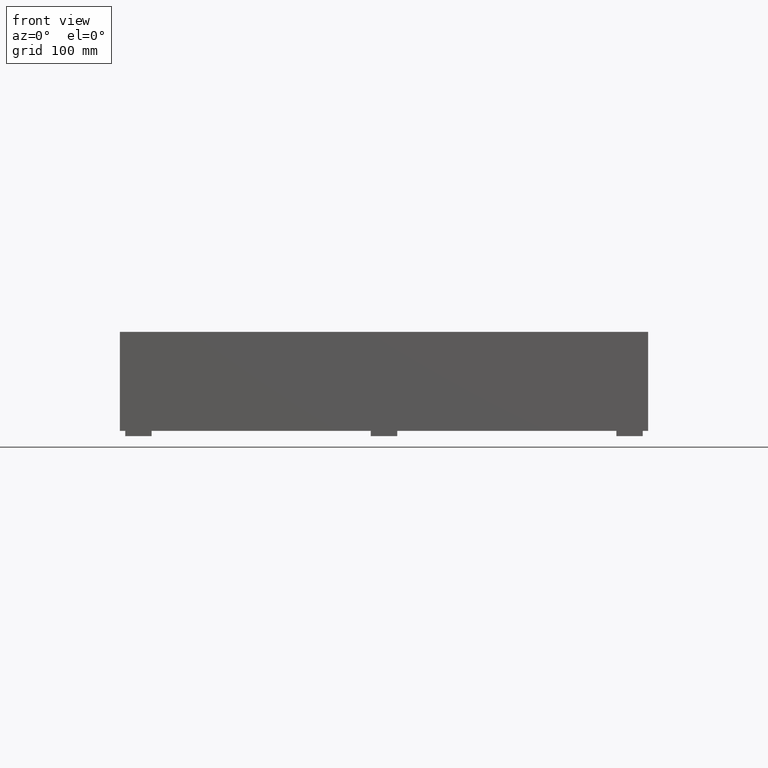
[diagram: clean part render]
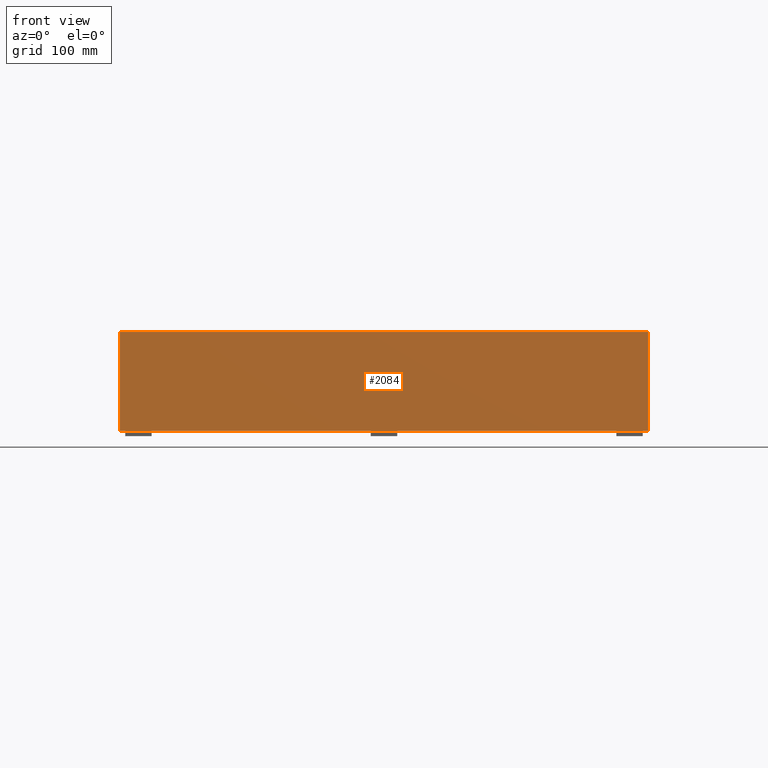
[diagram: same view with one face highlighted and labeled with its STEP entity id]
A machine part, front view. The second image highlights one B-rep face of the part: STEP entity #2084.
In plain terms, the highlighted planar face has unit normal (0, 1, 0).
Its self-contained STEP definition (entity closure, byte-faithful):
#76 = CARTESIAN_POINT ( 'NONE',  ( 0.0000000000000000000, 0.0000000000000000000, 0.0000000000000000000 ) ) ;
#101 = LINE ( 'NONE', #3537, #5213 ) ;
#147 = EDGE_CURVE ( 'NONE', #8886, #6701, #1473, .T. ) ;
#459 = DIRECTION ( 'NONE',  ( -1.000000000000000000, -0.0000000000000000000, -0.0000000000000000000 ) ) ;
#507 = EDGE_CURVE ( 'NONE', #4259, #8886, #4737, .T. ) ;
#631 = VECTOR ( 'NONE', #8361, 1000.000000000000000 ) ;
#1473 = LINE ( 'NONE', #4907, #631 ) ;
#1569 = DIRECTION ( 'NONE',  ( 0.0000000000000000000, -0.0000000000000000000, 1.000000000000000000 ) ) ;
#2084 = ADVANCED_FACE ( 'NONE', ( #2427 ), #5525, .F. ) ;
#2427 = FACE_OUTER_BOUND ( 'NONE', #7297, .T. ) ;
#2532 = CARTESIAN_POINT ( 'NONE',  ( 800.0000000000000000, 0.0000000000000000000, -150.0000000000000000 ) ) ;
#2821 = CARTESIAN_POINT ( 'NONE',  ( 800.0000000000000000, 0.0000000000000000000, 0.0000000000000000000 ) ) ;
#2912 = EDGE_CURVE ( 'NONE', #6701, #6988, #7797, .T. ) ;
#2953 = ORIENTED_EDGE ( 'NONE', *, *, #5172, .F. ) ;
#3208 = AXIS2_PLACEMENT_3D ( 'NONE', #5859, #9290, #1569 ) ;
#3514 = DIRECTION ( 'NONE',  ( 1.000000000000000000, 0.0000000000000000000, 0.0000000000000000000 ) ) ;
#3537 = CARTESIAN_POINT ( 'NONE',  ( 800.0000000000000000, 0.0000000000000000000, -150.0000000000000000 ) ) ;
#4259 = VERTEX_POINT ( 'NONE', #2532 ) ;
#4737 = LINE ( 'NONE', #8183, #10715 ) ;
#4907 = CARTESIAN_POINT ( 'NONE',  ( 0.0000000000000000000, 0.0000000000000000000, -150.0000000000000000 ) ) ;
#5172 = EDGE_CURVE ( 'NONE', #6988, #4259, #101, .T. ) ;
#5213 = VECTOR ( 'NONE', #6970, 1000.000000000000000 ) ;
#5473 = CARTESIAN_POINT ( 'NONE',  ( 0.0000000000000000000, 0.0000000000000000000, -150.0000000000000000 ) ) ;
#5525 = PLANE ( 'NONE',  #3208 ) ;
#5694 = CARTESIAN_POINT ( 'NONE',  ( 0.0000000000000000000, 0.0000000000000000000, 0.0000000000000000000 ) ) ;
#5859 = CARTESIAN_POINT ( 'NONE',  ( 0.0000000000000000000, 0.0000000000000000000, 0.0000000000000000000 ) ) ;
#5911 = ORIENTED_EDGE ( 'NONE', *, *, #147, .F. ) ;
#6005 = ORIENTED_EDGE ( 'NONE', *, *, #2912, .F. ) ;
#6701 = VERTEX_POINT ( 'NONE', #5694 ) ;
#6970 = DIRECTION ( 'NONE',  ( -0.0000000000000000000, -0.0000000000000000000, -1.000000000000000000 ) ) ;
#6988 = VERTEX_POINT ( 'NONE', #2821 ) ;
#7113 = ORIENTED_EDGE ( 'NONE', *, *, #507, .F. ) ;
#7297 = EDGE_LOOP ( 'NONE', ( #5911, #7113, #2953, #6005 ) ) ;
#7797 = LINE ( 'NONE', #76, #10582 ) ;
#8183 = CARTESIAN_POINT ( 'NONE',  ( 0.0000000000000000000, 0.0000000000000000000, -150.0000000000000000 ) ) ;
#8361 = DIRECTION ( 'NONE',  ( 0.0000000000000000000, 0.0000000000000000000, 1.000000000000000000 ) ) ;
#8886 = VERTEX_POINT ( 'NONE', #5473 ) ;
#9290 = DIRECTION ( 'NONE',  ( 0.0000000000000000000, 1.000000000000000000, 0.0000000000000000000 ) ) ;
#10582 = VECTOR ( 'NONE', #3514, 1000.000000000000000 ) ;
#10715 = VECTOR ( 'NONE', #459, 1000.000000000000000 ) ;